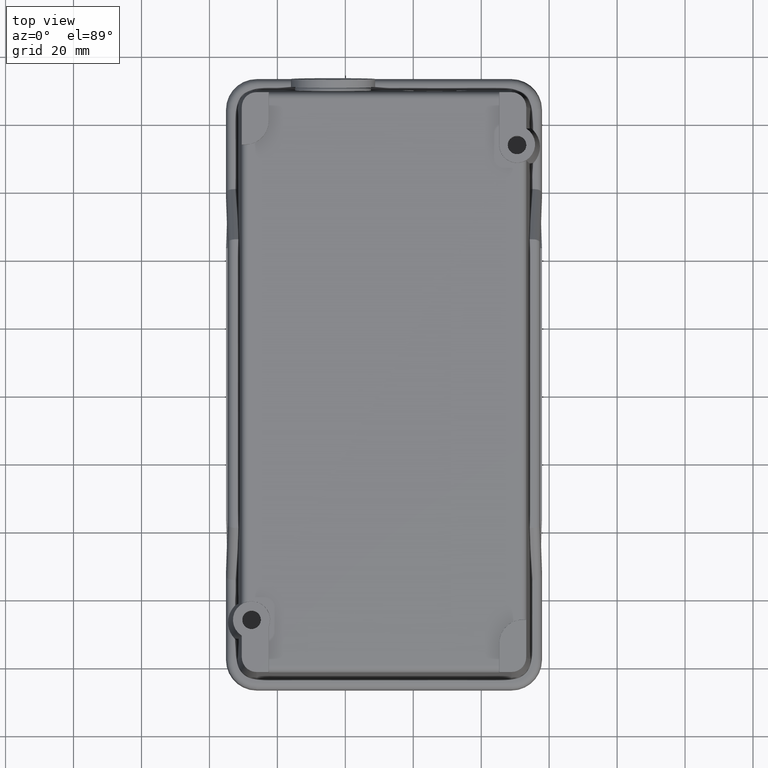
[diagram: clean part render]
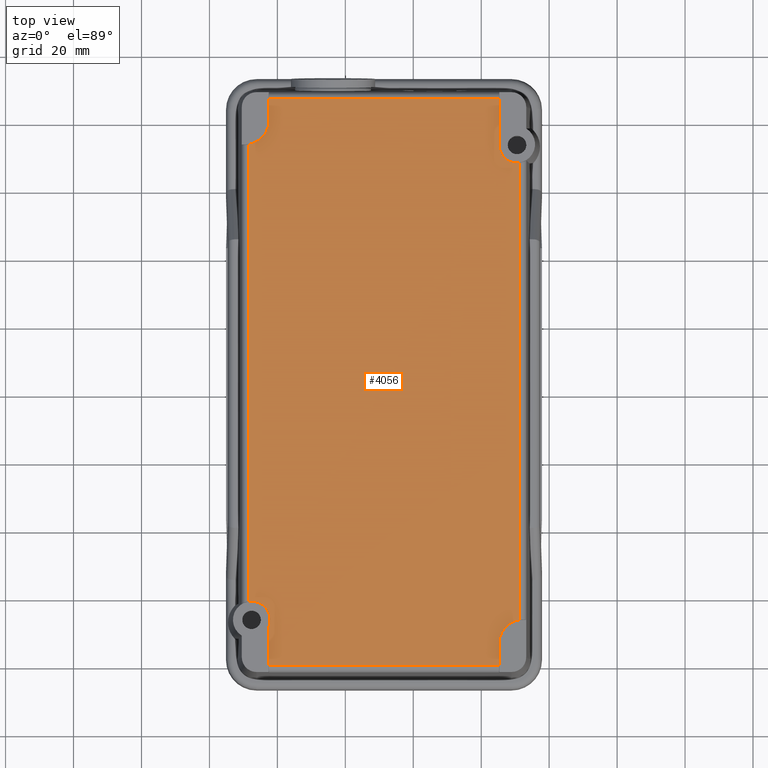
[diagram: same view with one face highlighted and labeled with its STEP entity id]
A machine part, top view. The second image highlights one B-rep face of the part: STEP entity #4056.
In plain terms, the highlighted planar face has unit normal (0, 0, 1).
Its self-contained STEP definition (entity closure, byte-faithful):
#1841=CARTESIAN_POINT('',(65.278736166263997,146.561854063201930,46.000000000000007));
#1842=VERTEX_POINT('',#1841);
#1860=CARTESIAN_POINT('',(-2.508553040495225,146.561854063201930,46.000000000000007));
#1861=VERTEX_POINT('',#1860);
#1869=CARTESIAN_POINT('',(-2.508553040495225,146.561854063201930,46.000000000000007));
#1870=DIRECTION('',(1.0,0.0,0.0));
#1871=VECTOR('',#1870,67.787289206759226);
#1872=LINE('',#1869,#1871);
#1873=EDGE_CURVE('',#1861,#1842,#1872,.T.);
#1952=CARTESIAN_POINT('',(71.347358616649842,127.703747191197450,46.000000000000007));
#1953=VERTEX_POINT('',#1952);
#1972=CARTESIAN_POINT('',(71.347358616649842,-6.856296005356006,46.000000000000007));
#1973=VERTEX_POINT('',#1972);
#1974=CARTESIAN_POINT('',(71.347358616649842,127.703747191197450,46.000000000000007));
#1975=DIRECTION('',(0.0,-1.0,0.0));
#1976=VECTOR('',#1975,134.560043196553470);
#1977=LINE('',#1974,#1976);
#1978=EDGE_CURVE('',#1953,#1973,#1977,.T.);
#2066=CARTESIAN_POINT('',(-2.508553040495214,-20.362680044328979,46.000000000000007));
#2067=VERTEX_POINT('',#2066);
#2085=CARTESIAN_POINT('',(65.278736166263982,-20.362680044328968,46.000000000000007));
#2086=VERTEX_POINT('',#2085);
#2094=CARTESIAN_POINT('',(65.278736166263982,-20.362680044328968,46.000000000000007));
#2095=DIRECTION('',(-1.0,0.0,0.0));
#2096=VECTOR('',#2095,67.787289206759198);
#2097=LINE('',#2094,#2096);
#2098=EDGE_CURVE('',#2086,#2067,#2097,.T.);
#2181=CARTESIAN_POINT('',(-8.577175490881073,-1.485245207637725,46.000000000000007));
#2182=VERTEX_POINT('',#2181);
#2202=CARTESIAN_POINT('',(-8.577175490881075,133.055470024228950,46.000000000000007));
#2203=VERTEX_POINT('',#2202);
#2204=CARTESIAN_POINT('',(-8.577175490881073,-1.485245207637725,46.000000000000007));
#2205=DIRECTION('',(0.0,1.0,0.0));
#2206=VECTOR('',#2205,134.540715231866670);
#2207=LINE('',#2204,#2206);
#2208=EDGE_CURVE('',#2182,#2203,#2207,.T.);
#3665=CARTESIAN_POINT('',(-2.508553040495223,-8.943727592724860,46.000000000000007));
#3666=VERTEX_POINT('',#3665);
#3681=CARTESIAN_POINT('',(-2.508553040495223,-8.943727592724860,46.000000000000007));
#3682=DIRECTION('',(0.0,-1.0,0.0));
#3683=VECTOR('',#3682,11.418952451604119);
#3684=LINE('',#3681,#3683);
#3685=EDGE_CURVE('',#3666,#2067,#3684,.T.);
#3743=CARTESIAN_POINT('',(65.278736166263954,132.880232871740700,46.000000000000007));
#3744=VERTEX_POINT('',#3743);
#3751=CARTESIAN_POINT('',(70.520797520908872,132.880232871740700,46.000000000000007));
#3752=DIRECTION('',(0.0,0.0,-1.0));
#3753=DIRECTION('',(-1.0,0.0,0.0));
#3754=AXIS2_PLACEMENT_3D('',#3751,#3752,#3753);
#3755=CIRCLE('',#3754,5.242061354644926);
#3756=EDGE_CURVE('',#1953,#3744,#3755,.T.);
#3781=CARTESIAN_POINT('',(65.278736166263954,132.880232871740700,46.000000000000007));
#3782=DIRECTION('',(0.0,1.0,0.0));
#3783=VECTOR('',#3782,13.681621191461232);
#3784=LINE('',#3781,#3783);
#3785=EDGE_CURVE('',#3744,#1842,#3784,.T.);
#3842=CARTESIAN_POINT('',(-2.508553040495221,139.993231612816060,46.000000000000007));
#3843=VERTEX_POINT('',#3842);
#3850=CARTESIAN_POINT('',(-2.508553040495225,146.561854063201930,46.000000000000007));
#3851=DIRECTION('',(0.0,-1.0,0.0));
#3852=VECTOR('',#3851,6.568622450385874);
#3853=LINE('',#3850,#3852);
#3854=EDGE_CURVE('',#1861,#3843,#3853,.T.);
#3882=CARTESIAN_POINT('',(-9.508553040495221,139.993231612816060,46.000000000000007));
#3883=DIRECTION('',(0.0,0.0,-1.0));
#3884=DIRECTION('',(0.0,-1.0,0.0));
#3885=AXIS2_PLACEMENT_3D('',#3882,#3883,#3884);
#3886=CIRCLE('',#3885,7.000000000000001);
#3887=EDGE_CURVE('',#3843,#2203,#3886,.T.);
#3943=CARTESIAN_POINT('',(65.278736166263997,-13.794057593943121,46.000000000000007));
#3944=VERTEX_POINT('',#3943);
#3951=CARTESIAN_POINT('',(65.278736166263982,-20.362680044328968,46.000000000000007));
#3952=DIRECTION('',(0.0,1.0,0.0));
#3953=VECTOR('',#3952,6.568622450385847);
#3954=LINE('',#3951,#3953);
#3955=EDGE_CURVE('',#2086,#3944,#3954,.T.);
#3983=CARTESIAN_POINT('',(72.278736166263997,-13.794057593943116,46.000000000000007));
#3984=DIRECTION('',(0.0,0.0,-1.0));
#3985=DIRECTION('',(0.0,1.0,0.0));
#3986=AXIS2_PLACEMENT_3D('',#3983,#3984,#3985);
#3987=CIRCLE('',#3986,7.000000000000001);
#3988=EDGE_CURVE('',#3944,#1973,#3987,.T.);
#4031=CARTESIAN_POINT('',(31.385091562884384,63.099587009436462,46.000000000000007));
#4032=DIRECTION('',(0.0,0.0,1.0));
#4033=DIRECTION('',(1.0,0.0,0.0));
#4034=AXIS2_PLACEMENT_3D('',#4031,#4032,#4033);
#4035=PLANE('',#4034);
#4036=ORIENTED_EDGE('',*,*,#1873,.F.);
#4037=ORIENTED_EDGE('',*,*,#3854,.T.);
#4038=ORIENTED_EDGE('',*,*,#3887,.T.);
#4039=ORIENTED_EDGE('',*,*,#2208,.F.);
#4040=CARTESIAN_POINT('',(-7.614908437115623,-6.900412990563529,46.000000000000007));
#4041=DIRECTION('',(0.0,0.0,-1.0));
#4042=DIRECTION('',(1.0,0.0,0.0));
#4043=AXIS2_PLACEMENT_3D('',#4040,#4041,#4042);
#4044=CIRCLE('',#4043,5.500000000000000);
#4045=EDGE_CURVE('',#2182,#3666,#4044,.T.);
#4046=ORIENTED_EDGE('',*,*,#4045,.T.);
#4047=ORIENTED_EDGE('',*,*,#3685,.T.);
#4048=ORIENTED_EDGE('',*,*,#2098,.F.);
#4049=ORIENTED_EDGE('',*,*,#3955,.T.);
#4050=ORIENTED_EDGE('',*,*,#3988,.T.);
#4051=ORIENTED_EDGE('',*,*,#1978,.F.);
#4052=ORIENTED_EDGE('',*,*,#3756,.T.);
#4053=ORIENTED_EDGE('',*,*,#3785,.T.);
#4054=EDGE_LOOP('',(#4036,#4037,#4038,#4039,#4046,#4047,#4048,#4049,#4050,#4051,#4052,#4053));
#4055=FACE_OUTER_BOUND('',#4054,.T.);
#4056=ADVANCED_FACE('',(#4055),#4035,.T.);